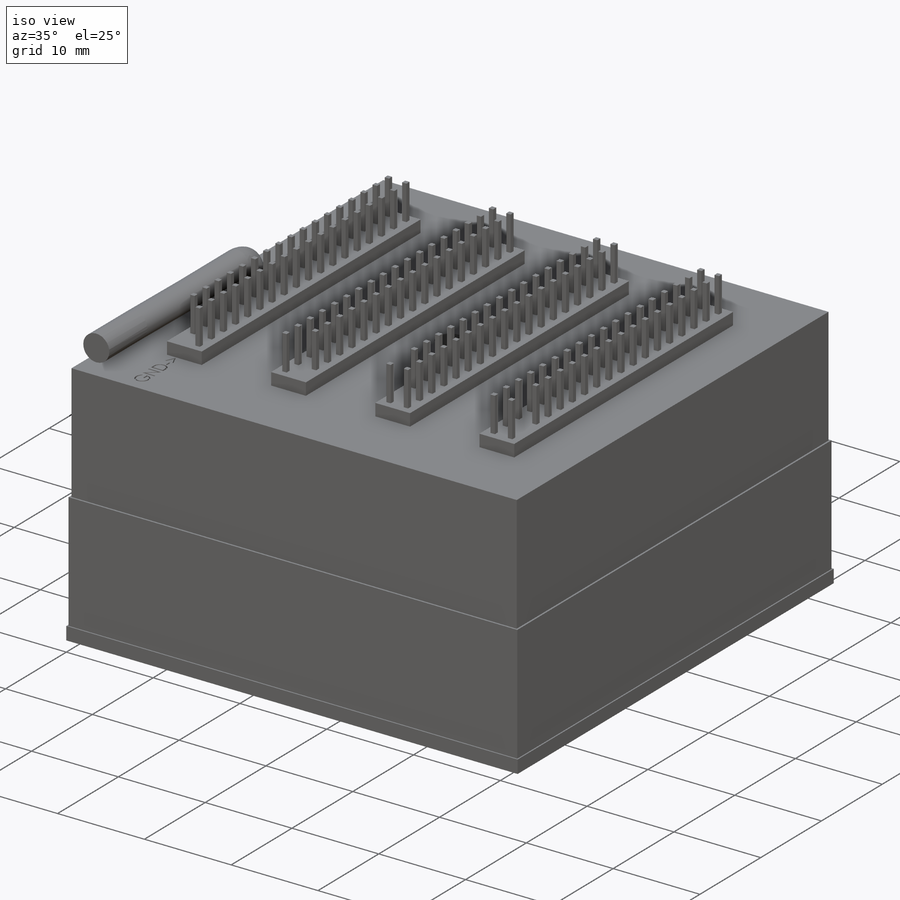
[diagram: iso view]
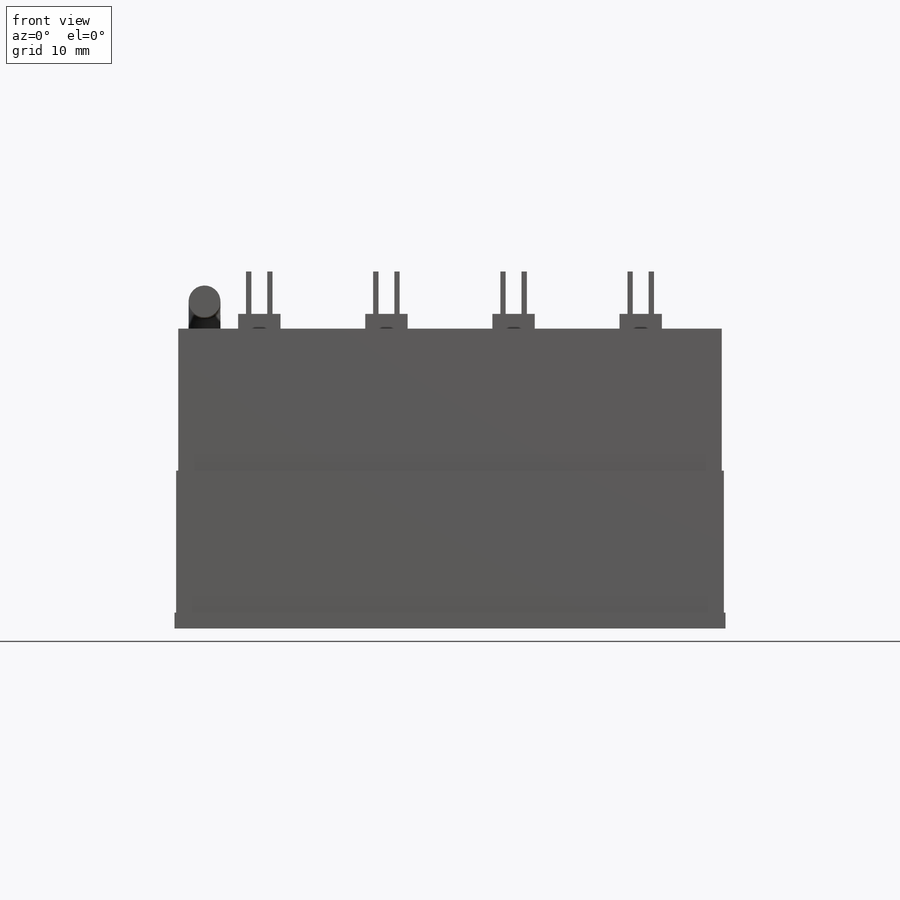
[diagram: front view]
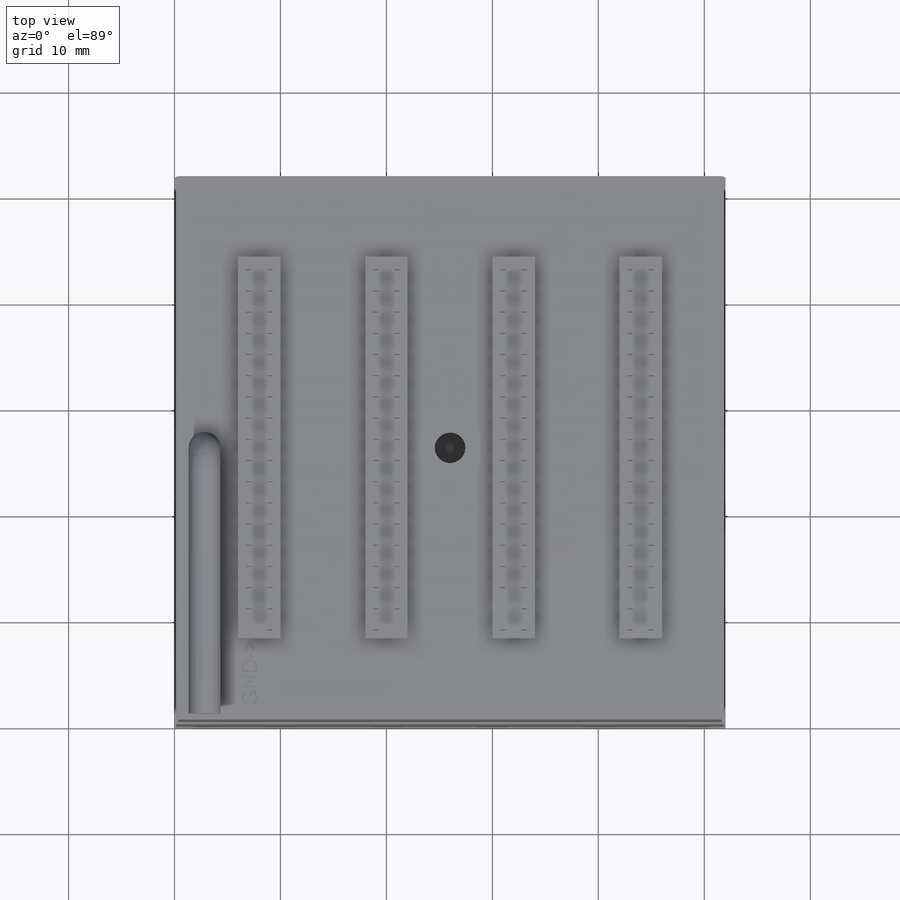
[diagram: top view]
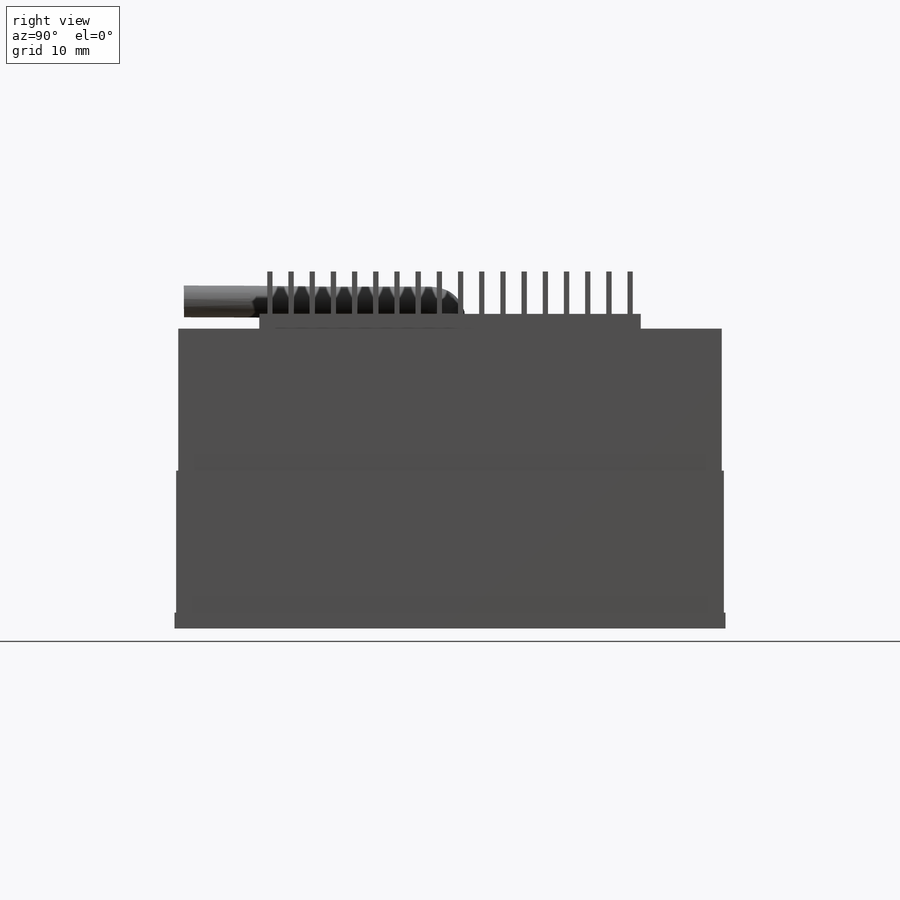
[diagram: right view]
SOLIDWORKS PART (.sldprt)
format: sldprt  version: not decoded by parser v0  size: 1,741,312 bytes
history: native  units: mm
features: sketch x11, extrude x5, cut_extrude x4, material x1, sweep x1, pattern_linear x1 (+11 scaffold rows collapsed)
feature tree (34):
  scaffold x11  (default folders/planes/origin — collapsed)
  material  "Material <not specified>"
  sketch  "Sketch1"  dims[D1=52.0mm]
  extrude  "Boss-Extrude1"  Depth=1.5mm
  sketch  "Sketch2"
  extrude  "Boss-Extrude2"  Depth=13.4mm
  sketch  "Sketch3"
  extrude  "Boss-Extrude3"  Depth=13.4mm
  sketch  "Sketch4"  dims[c1.D1=4.0mm c2.D1=4.0]
  extrude  "Boss-Extrude4"  Depth=1.4mm
  sketch  "Sketch5"  dims[D1=~6.594416mm]
  cut_extrude  "Cut-Extrude1"  Depth=5mm
  sketch  "Sketch6"  dims[D1=1.0mm]
  sketch  "Sketch7"
  sweep  "Sweep4"
  sketch  "Sketch8"
  cut_extrude  "Cut-Extrude2"  Depth=2mm
  sketch  "Sketch10"  dims[D2=17.0]
  extrude  "Boss-Extrude5"  Depth=4mm
  pattern_linear  "LPattern1"  Count1=4 Count2=1 Spacing1=12mm Spacing2=10mm
  sketch  "Sketch11"
  cut_extrude  "Cut-Extrude3"  Depth=4mm
  sketch  "Sketch12"
  cut_extrude  "Cut-Extrude4"  Depth=0.2mm
decode coverage: 15 of 22 modeling features carry decoded parameters
note: ~ marks probable driven/reference dimensions
note: suppression state not decoded; provenance and decode notes live in map.json
